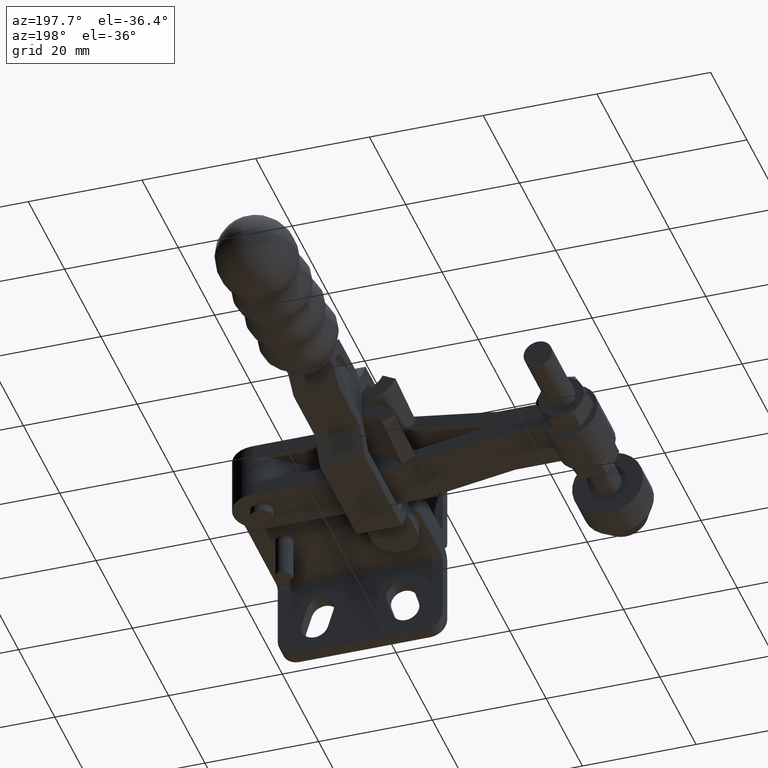
[diagram: clean part render]
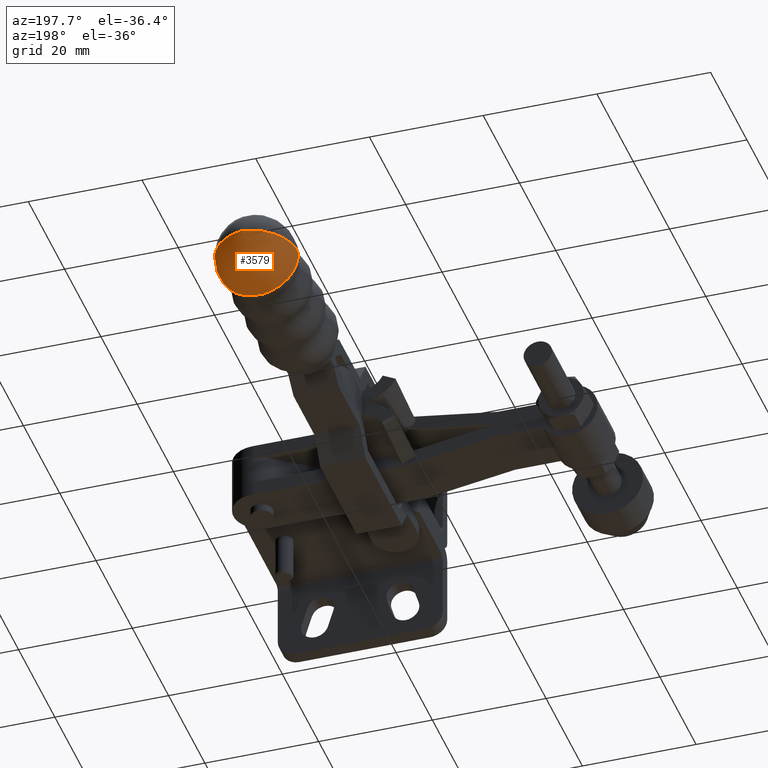
[diagram: same view with one face highlighted and labeled with its STEP entity id]
A machine part, auxiliary view. The second image highlights one B-rep face of the part: STEP entity #3579.
In plain terms, the highlighted toroidal blend (fillet) surface has major radius 1.1565 mm and minor (blend) radius 8.2181 mm.
Its self-contained STEP definition (entity closure, byte-faithful):
#324 = EDGE_CURVE ( 'NONE', #4941, #7940, #8523, .T. ) ;
#349 = CARTESIAN_POINT ( 'NONE',  ( -23.89777646684054300, 87.85993020534580500, 1.453053448849183800E-013 ) ) ;
#1137 = DIRECTION ( 'NONE',  ( -0.9999990676642527300, 0.001365529430395551500, 4.431672016822881300E-017 ) ) ;
#1502 = AXIS2_PLACEMENT_3D ( 'NONE', #9641, #9725, #3287 ) ;
#1765 = CIRCLE ( 'NONE', #5781, 8.218065283648254400 ) ;
#1806 = CARTESIAN_POINT ( 'NONE',  ( -23.89640585436016100, 88.86365167189660500, 1.462383704440908700E-013 ) ) ;
#2048 = FACE_OUTER_BOUND ( 'NONE', #2341, .T. ) ;
#2341 = EDGE_LOOP ( 'NONE', ( #4115, #5337, #9655 ) ) ;
#2873 = CARTESIAN_POINT ( 'NONE',  ( -25.05294438214221100, 88.86523096076611200, 1.461479892335108200E-013 ) ) ;
#3200 = CIRCLE ( 'NONE', #4477, 7.000000000000006200 ) ;
#3287 = DIRECTION ( 'NONE',  ( 0.0000000000000000000, 1.000000000000000000, 9.296249920674849200E-016 ) ) ;
#3579 = ADVANCED_FACE ( 'NONE', ( #2048 ), #5359, .T. ) ;
#3635 = DIRECTION ( 'NONE',  ( 0.0000000000000000000, -1.000000000000000000, -9.294577629428759100E-016 ) ) ;
#3693 = CARTESIAN_POINT ( 'NONE',  ( -30.89776994049031700, 87.86948891135857300, 1.456155619260959700E-013 ) ) ;
#4016 = CARTESIAN_POINT ( 'NONE',  ( -16.89778299319075200, 87.85037149933303600, 1.458523806031439200E-013 ) ) ;
#4115 = ORIENTED_EDGE ( 'NONE', *, *, #8386, .F. ) ;
#4139 = DIRECTION ( 'NONE',  ( -0.9999990676642528400, 0.001365529430395566900, 4.431672016822948500E-017 ) ) ;
#4477 = AXIS2_PLACEMENT_3D ( 'NONE', #349, #5627, #1137 ) ;
#4548 = VERTEX_POINT ( 'NONE', #4016 ) ;
#4941 = VERTEX_POINT ( 'NONE', #3693 ) ;
#5337 = ORIENTED_EDGE ( 'NONE', *, *, #5634, .T. ) ;
#5359 = TOROIDAL_SURFACE ( 'NONE', #6847, -1.156539606065263700, 8.218065283648257900 ) ;
#5627 = DIRECTION ( 'NONE',  ( 0.001365529430395566700, 0.9999990676642527300, 9.295653429488339400E-016 ) ) ;
#5634 = EDGE_CURVE ( 'NONE', #4548, #4941, #3200, .T. ) ;
#5781 = AXIS2_PLACEMENT_3D ( 'NONE', #2873, #8024, #3635 ) ;
#6599 = CARTESIAN_POINT ( 'NONE',  ( -23.88529552784672200, 96.99992168379712600, 1.538015721194707300E-013 ) ) ;
#6847 = AXIS2_PLACEMENT_3D ( 'NONE', #1806, #8505, #4139 ) ;
#7940 = VERTEX_POINT ( 'NONE', #6599 ) ;
#8024 = DIRECTION ( 'NONE',  ( -7.941723571964168500E-017, -9.294577629428759100E-016, 1.000000000000000000 ) ) ;
#8386 = EDGE_CURVE ( 'NONE', #4548, #7940, #1765, .T. ) ;
#8505 = DIRECTION ( 'NONE',  ( 0.001365529430395566700, 0.9999990676642527300, 9.295653429488339400E-016 ) ) ;
#8523 = CIRCLE ( 'NONE', #1502, 8.218065283648254400 ) ;
#9641 = CARTESIAN_POINT ( 'NONE',  ( -22.73986732657811100, 88.86207238302711200, 1.461871164020053800E-013 ) ) ;
#9655 = ORIENTED_EDGE ( 'NONE', *, *, #324, .T. ) ;
#9725 = DIRECTION ( 'NONE',  ( -4.304733001689494600E-017, 9.296249920674835400E-016, -1.000000000000000000 ) ) ;